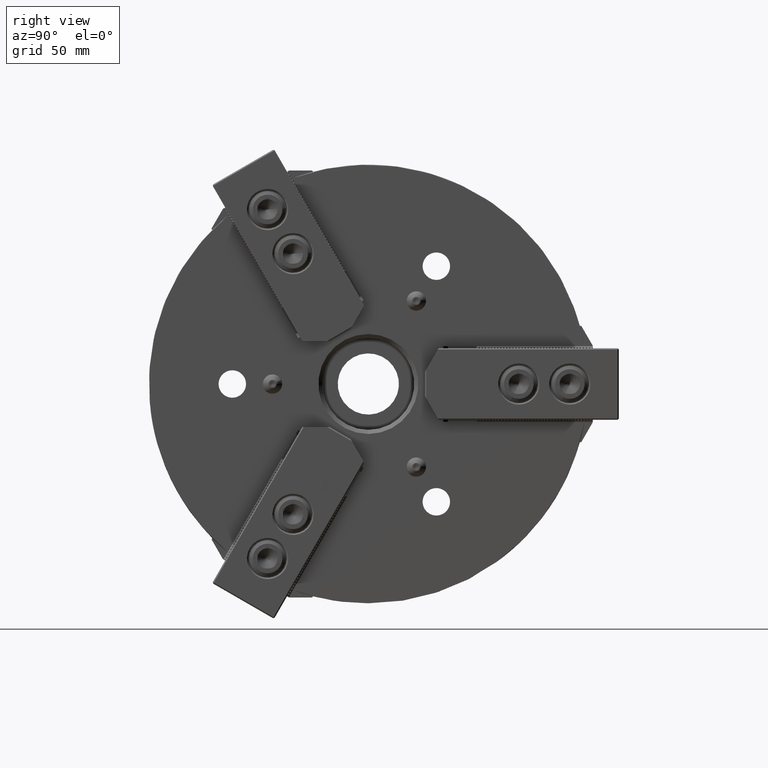
[diagram: clean part render]
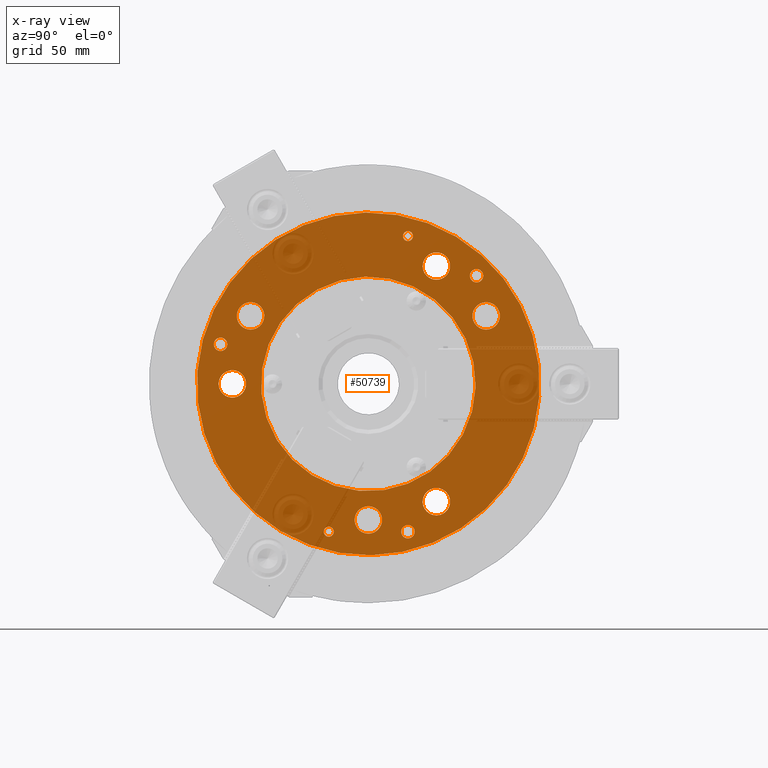
[diagram: x-ray — body ghosted, one internal face saturated and labeled with its STEP entity id]
A machine part, right view, then the same camera in x-ray: the body is ghosted and one INTERNAL B-rep face — a face not visible from any outside direction — is saturated and labeled: STEP entity #50739.
In plain terms, the highlighted planar face has unit normal (1, 0, 0).
Its self-contained STEP definition (entity closure, byte-faithful):
#13084=PLANE('',#53996);
#15832=ORIENTED_EDGE('',*,*,#30604,.F.);
#15833=ORIENTED_EDGE('',*,*,#30603,.T.);
#15834=ORIENTED_EDGE('',*,*,#30599,.F.);
#15835=ORIENTED_EDGE('',*,*,#30597,.F.);
#15836=ORIENTED_EDGE('',*,*,#30595,.F.);
#15837=ORIENTED_EDGE('',*,*,#30593,.F.);
#15838=ORIENTED_EDGE('',*,*,#30591,.F.);
#15839=ORIENTED_EDGE('',*,*,#30589,.F.);
#15840=ORIENTED_EDGE('',*,*,#30587,.F.);
#15841=ORIENTED_EDGE('',*,*,#30583,.F.);
#15842=ORIENTED_EDGE('',*,*,#30579,.F.);
#15843=ORIENTED_EDGE('',*,*,#30575,.F.);
#15844=ORIENTED_EDGE('',*,*,#30571,.F.);
#30571=EDGE_CURVE('',#42124,#42124,#37966,.T.);
#30575=EDGE_CURVE('',#42128,#42128,#37970,.T.);
#30579=EDGE_CURVE('',#42132,#42132,#37974,.T.);
#30583=EDGE_CURVE('',#42136,#42136,#37978,.T.);
#30587=EDGE_CURVE('',#42140,#42140,#37982,.T.);
#30589=EDGE_CURVE('',#42142,#42142,#37984,.T.);
#30591=EDGE_CURVE('',#42144,#42144,#37986,.T.);
#30593=EDGE_CURVE('',#42146,#42146,#37988,.T.);
#30595=EDGE_CURVE('',#42148,#42148,#37990,.T.);
#30597=EDGE_CURVE('',#42150,#42150,#37992,.T.);
#30599=EDGE_CURVE('',#42152,#42152,#37994,.T.);
#30603=EDGE_CURVE('',#42156,#42156,#37998,.T.);
#30604=EDGE_CURVE('',#42157,#42157,#37999,.T.);
#37966=CIRCLE('',#53942,2.4585);
#37970=CIRCLE('',#53949,2.4585);
#37974=CIRCLE('',#53956,3.3);
#37978=CIRCLE('',#53963,3.3);
#37982=CIRCLE('',#53970,3.3);
#37984=CIRCLE('',#53973,6.75);
#37986=CIRCLE('',#53976,6.75);
#37988=CIRCLE('',#53979,6.75);
#37990=CIRCLE('',#53982,6.75);
#37992=CIRCLE('',#53985,6.75);
#37994=CIRCLE('',#53988,6.75);
#37998=CIRCLE('',#53995,52.6);
#37999=CIRCLE('',#53997,84.);
#38859=EDGE_LOOP('',(#15832));
#38860=EDGE_LOOP('',(#15833));
#38861=EDGE_LOOP('',(#15834));
#38862=EDGE_LOOP('',(#15835));
#38863=EDGE_LOOP('',(#15836));
#38864=EDGE_LOOP('',(#15837));
#38865=EDGE_LOOP('',(#15838));
#38866=EDGE_LOOP('',(#15839));
#38867=EDGE_LOOP('',(#15840));
#38868=EDGE_LOOP('',(#15841));
#38869=EDGE_LOOP('',(#15842));
#38870=EDGE_LOOP('',(#15843));
#38871=EDGE_LOOP('',(#15844));
#42124=VERTEX_POINT('',#71558);
#42128=VERTEX_POINT('',#71569);
#42132=VERTEX_POINT('',#71580);
#42136=VERTEX_POINT('',#71591);
#42140=VERTEX_POINT('',#71602);
#42142=VERTEX_POINT('',#71607);
#42144=VERTEX_POINT('',#71612);
#42146=VERTEX_POINT('',#71617);
#42148=VERTEX_POINT('',#71622);
#42150=VERTEX_POINT('',#71627);
#42152=VERTEX_POINT('',#71632);
#42156=VERTEX_POINT('',#71643);
#42157=VERTEX_POINT('',#71646);
#47291=FACE_BOUND('',#38859,.T.);
#47292=FACE_BOUND('',#38860,.T.);
#47293=FACE_BOUND('',#38861,.T.);
#47294=FACE_BOUND('',#38862,.T.);
#47295=FACE_BOUND('',#38863,.T.);
#47296=FACE_BOUND('',#38864,.T.);
#47297=FACE_BOUND('',#38865,.T.);
#47298=FACE_BOUND('',#38866,.T.);
#47299=FACE_BOUND('',#38867,.T.);
#47300=FACE_BOUND('',#38868,.T.);
#47301=FACE_BOUND('',#38869,.T.);
#47302=FACE_BOUND('',#38870,.T.);
#47303=FACE_BOUND('',#38871,.T.);
#50739=ADVANCED_FACE('',(#47291,#47292,#47293,#47294,#47295,#47296,#47297,
#47298,#47299,#47300,#47301,#47302,#47303),#13084,.T.);
#53942=AXIS2_PLACEMENT_3D('',#71557,#57667,#57668);
#53949=AXIS2_PLACEMENT_3D('',#71568,#57681,#57682);
#53956=AXIS2_PLACEMENT_3D('',#71579,#57695,#57696);
#53963=AXIS2_PLACEMENT_3D('',#71590,#57709,#57710);
#53970=AXIS2_PLACEMENT_3D('',#71601,#57723,#57724);
#53973=AXIS2_PLACEMENT_3D('',#71606,#57729,#57730);
#53976=AXIS2_PLACEMENT_3D('',#71611,#57735,#57736);
#53979=AXIS2_PLACEMENT_3D('',#71616,#57741,#57742);
#53982=AXIS2_PLACEMENT_3D('',#71621,#57747,#57748);
#53985=AXIS2_PLACEMENT_3D('',#71626,#57753,#57754);
#53988=AXIS2_PLACEMENT_3D('',#71631,#57759,#57760);
#53995=AXIS2_PLACEMENT_3D('',#71642,#57773,#57774);
#53996=AXIS2_PLACEMENT_3D('',#71644,#57775,#57776);
#53997=AXIS2_PLACEMENT_3D('',#71645,#57777,#57778);
#57667=DIRECTION('',(1.,0.,0.));
#57668=DIRECTION('',(0.,-0.965925826289065,0.258819045102534));
#57681=DIRECTION('',(1.,0.,0.));
#57682=DIRECTION('',(0.,-0.965925826289065,0.258819045102534));
#57695=DIRECTION('',(1.,0.,0.));
#57696=DIRECTION('',(0.,-0.965925826289065,0.258819045102534));
#57709=DIRECTION('',(1.,0.,0.));
#57710=DIRECTION('',(0.,-0.965925826289065,0.258819045102534));
#57723=DIRECTION('',(1.,0.,0.));
#57724=DIRECTION('',(0.,-0.965925826289065,0.258819045102534));
#57729=DIRECTION('',(1.,0.,0.));
#57730=DIRECTION('',(0.,-0.258819045102534,-0.965925826289065));
#57735=DIRECTION('',(1.,0.,0.));
#57736=DIRECTION('',(0.,-0.258819045102534,-0.965925826289065));
#57741=DIRECTION('',(1.,0.,0.));
#57742=DIRECTION('',(0.,-0.258819045102534,-0.965925826289065));
#57747=DIRECTION('',(1.,0.,0.));
#57748=DIRECTION('',(0.,-0.258819045102534,-0.965925826289065));
#57753=DIRECTION('',(1.,0.,0.));
#57754=DIRECTION('',(0.,-0.258819045102534,-0.965925826289065));
#57759=DIRECTION('',(1.,0.,0.));
#57760=DIRECTION('',(0.,-0.258819045102534,-0.965925826289065));
#57773=DIRECTION('',(-1.,0.,0.));
#57774=DIRECTION('',(0.,0.965925826289065,-0.258819045102534));
#57775=DIRECTION('',(1.,0.,0.));
#57776=DIRECTION('',(0.,-0.965925826289065,0.258819045102534));
#57777=DIRECTION('',(-1.,0.,0.));
#57778=DIRECTION('',(0.,0.965925826289065,-0.258819045102534));
#71557=CARTESIAN_POINT('',(-95.,-19.41142838269,-72.4444369716798));
#71558=CARTESIAN_POINT('',(-95.,-21.7861570266217,-71.8081303492952));
#71568=CARTESIAN_POINT('',(-95.,19.41142838269,72.4444369716799));
#71569=CARTESIAN_POINT('',(-95.,17.0366997387584,73.0807435940645));
#71579=CARTESIAN_POINT('',(-95.,-72.4444369716798,19.4114283826901));
#71580=CARTESIAN_POINT('',(-95.,-75.6319921984338,20.2655312315284));
#71590=CARTESIAN_POINT('',(-95.,53.0330085889918,53.0330085889904));
#71591=CARTESIAN_POINT('',(-95.,49.8454533622379,53.8871114378288));
#71601=CARTESIAN_POINT('',(-95.,19.4114283826881,-72.4444369716804));
#71602=CARTESIAN_POINT('',(-95.,16.2238731559342,-71.590334122842));
#71606=CARTESIAN_POINT('',(-95.,57.7422437973279,33.3374999999993));
#71607=CARTESIAN_POINT('',(-95.,55.9952152428858,26.8175006725481));
#71611=CARTESIAN_POINT('',(-95.,33.3375000000007,57.7422437973271));
#71612=CARTESIAN_POINT('',(-95.,31.5904714455586,51.2222444698759));
#71616=CARTESIAN_POINT('',(-95.,-57.7422437973269,33.3375000000009));
#71617=CARTESIAN_POINT('',(-95.,-59.4892723517691,26.8175006725497));
#71621=CARTESIAN_POINT('',(-95.,-66.675,9.17668718791731E-13));
#71622=CARTESIAN_POINT('',(-95.,-68.4220285544421,-6.51999932745027));
#71626=CARTESIAN_POINT('',(-95.,-8.74300631892311E-13,-66.6749999999999));
#71627=CARTESIAN_POINT('',(-95.,-1.74702855444298,-73.1949993274511));
#71631=CARTESIAN_POINT('',(-95.,33.3374999999993,-57.7422437973278));
#71632=CARTESIAN_POINT('',(-95.,31.5904714455572,-64.262243124779));
#71642=CARTESIAN_POINT('',(-95.,1.78647059178206E-29,4.33680868994202E-14));
#71643=CARTESIAN_POINT('',(-95.,50.8076984628048,-13.6138817723932));
#71644=CARTESIAN_POINT('',(-95.,81.1377694082814,-21.7407997886128));
#71645=CARTESIAN_POINT('',(-95.,1.78647059178206E-29,4.33680868994202E-14));
#71646=CARTESIAN_POINT('',(-95.,81.1377694082814,-21.7407997886128));